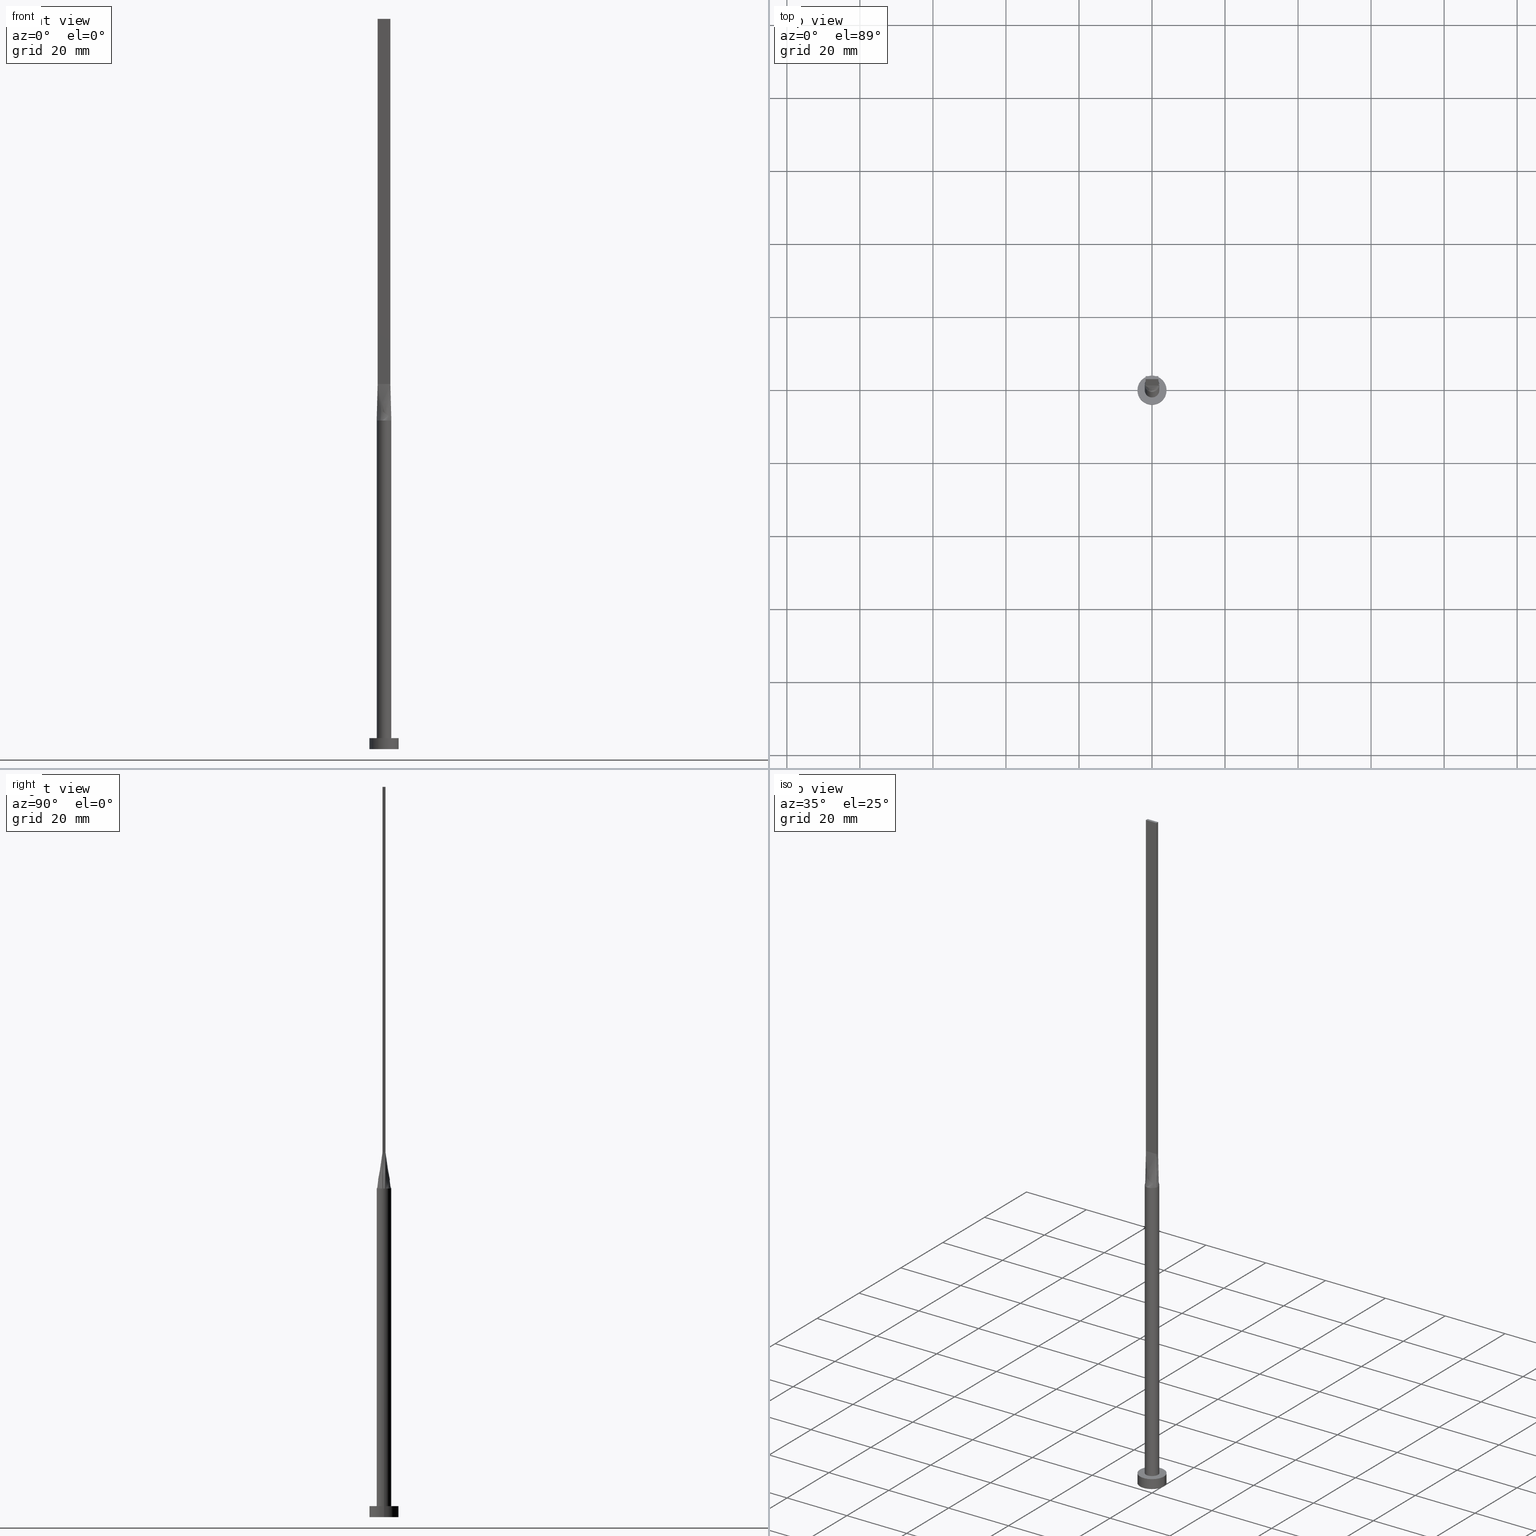
[diagram: canonical four-view strip — front | top / right | iso, engineering-drawing reading convention]
A machine part, canonical four-view strip (front | top / right | iso — engineering-drawing reading convention). The complete STEP part file that produces these views, byte-faithful:
ISO-10303-21;
HEADER;
FILE_DESCRIPTION (( 'STEP AP203' ),
    '1' );
FILE_NAME ('a8f1.STEP',
    '2026-02-12T09:06:40',
    ( '' ),
    ( '' ),
    'SwSTEP 2.0',
    'SolidWorks 2019',
    '' );
FILE_SCHEMA (( 'CONFIG_CONTROL_DESIGN' ));
ENDSEC;

DATA;
#1 = DIRECTION ( 'NONE',  ( 1.000000000000000000, 0.000000000000000000, 0.000000000000000000 ) ) ;
#2 = ADVANCED_FACE ( 'NONE', ( #146 ), #374, .T. ) ;
#3 = CARTESIAN_POINT ( 'NONE',  ( -0.5307032259479420588, 1.945168061822314609, 90.00000000000000000 ) ) ;
#4 = CC_DESIGN_SECURITY_CLASSIFICATION ( #548, ( #376 ) ) ;
#5 = FACE_OUTER_BOUND ( 'NONE', #440, .T. ) ;
#6 = CYLINDRICAL_SURFACE ( 'NONE', #176, 4.000000000000000000 ) ;
#7 = EDGE_CURVE ( 'NONE', #461, #222, #410, .T. ) ;
#8 = CARTESIAN_POINT ( 'NONE',  ( -1.002818635501954381, 1.749193953526918532, 90.00000000000001421 ) ) ;
#9 = APPROVAL_PERSON_ORGANIZATION ( #28, #456, #513 ) ;
#10 = ORIENTED_EDGE ( 'NONE', *, *, #96, .T. ) ;
#11 = DIRECTION ( 'NONE',  ( 1.000000000000000000, 0.000000000000000000, 0.000000000000000000 ) ) ;
#12 = VERTEX_POINT ( 'NONE', #497 ) ;
#13 = CARTESIAN_POINT ( 'NONE',  ( 0.000000000000000000, 0.000000000000000000, 3.000000000000000000 ) ) ;
#14 = ORIENTED_EDGE ( 'NONE', *, *, #127, .F. ) ;
#15 = AXIS2_PLACEMENT_3D ( 'NONE', #186, #125, #353 ) ;
#16 = CIRCLE ( 'NONE', #322, 4.000000000000000000 ) ;
#17 = CARTESIAN_POINT ( 'NONE',  ( 1.999683952654101260, 4.637163118916083254E-16, 90.00000000000000000 ) ) ;
#18 = EDGE_CURVE ( 'NONE', #448, #461, #359, .T. ) ;
#19 = CARTESIAN_POINT ( 'NONE',  ( -1.999683952654101704, -4.787247324473225831E-16, 90.00000000000000000 ) ) ;
#20 = PERSON_AND_ORGANIZATION_ROLE ( 'design_supplier' ) ;
#21 = DIRECTION ( 'NONE',  ( 0.000000000000000000, -0.000000000000000000, -1.000000000000000000 ) ) ;
#22 = DATE_AND_TIME ( #169, #208 ) ;
#23 = FACE_OUTER_BOUND ( 'NONE', #76, .T. ) ;
#24 = ORIENTED_EDGE ( 'NONE', *, *, #313, .T. ) ;
#25 = CARTESIAN_POINT ( 'NONE',  ( 1.604166666666666963, -0.3999999999999997446, 99.99999999999998579 ) ) ;
#26 = ORIENTED_EDGE ( 'NONE', *, *, #59, .T. ) ;
#27 = CARTESIAN_POINT ( 'NONE',  ( -1.749999999999999778, 0.4000000000000003553, 99.99999999999998579 ) ) ;
#28 = PERSON_AND_ORGANIZATION ( #140, #230 ) ;
#29 = EDGE_LOOP ( 'NONE', ( #183, #435, #419, #123, #515 ) ) ;
#30 = DIRECTION ( 'NONE',  ( 1.000000000000000000, -2.710505431213761085E-16, 0.000000000000000000 ) ) ;
#31 = ORIENTED_EDGE ( 'NONE', *, *, #127, .T. ) ;
#32 = DATE_AND_TIME ( #438, #433 ) ;
#33 = CARTESIAN_POINT ( 'NONE',  ( -0.5307032259479425029, -1.945168061822315275, 90.00000000000001421 ) ) ;
#34 = ADVANCED_FACE ( 'NONE', ( #298 ), #66, .F. ) ;
#35 = VECTOR ( 'NONE', #154, 1000.000000000000000 ) ;
#36 = DIRECTION ( 'NONE',  ( 0.000000000000000000, 0.000000000000000000, 1.000000000000000000 ) ) ;
#37 = APPROVAL_PERSON_ORGANIZATION ( #566, #296, #378 ) ;
#38 =( NAMED_UNIT ( * ) PLANE_ANGLE_UNIT ( ) SI_UNIT ( $, .RADIAN. ) );
#39 = CARTESIAN_POINT ( 'NONE',  ( -1.750000000000000000, -0.3999999999999996891, 99.99999999999998579 ) ) ;
#40 = EDGE_CURVE ( 'NONE', #117, #81, #54, .T. ) ;
#41 = DIRECTION ( 'NONE',  ( 0.000000000000000000, 0.000000000000000000, 1.000000000000000000 ) ) ;
#42 = DIRECTION ( 'NONE',  ( -1.000000000000000000, -0.000000000000000000, -0.000000000000000000 ) ) ;
#43 = CIRCLE ( 'NONE', #429, 2.000000000000000000 ) ;
#44 = VECTOR ( 'NONE', #130, 1000.000000000000227 ) ;
#45 = CARTESIAN_POINT ( 'NONE',  ( 1.749999999999999778, 0.4000000000000003553, 200.0000000000000000 ) ) ;
#46 = LOCAL_TIME ( 10, 6, 40.00000000000000000, #342 ) ;
#47 = CARTESIAN_POINT ( 'NONE',  ( -1.949717013143734468, 0.4456496030042821910, 90.00000000000000000 ) ) ;
#48 = CARTESIAN_POINT ( 'NONE',  ( -1.669156890509896796, 1.119033439449084399, 89.99999999999998579 ) ) ;
#49 = CARTESIAN_POINT ( 'NONE',  ( -1.749999999999999778, 0.4000000000000003553, 99.99999999999998579 ) ) ;
#50 = CARTESIAN_POINT ( 'NONE',  ( 0.5307032259479425029, 1.945168061822314165, 90.00000000000001421 ) ) ;
#51 = ORIENTED_EDGE ( 'NONE', *, *, #188, .F. ) ;
#52 = CARTESIAN_POINT ( 'NONE',  ( 0.2657394870669761988, 1.999999999999999556, 90.00000000000000000 ) ) ;
#53 = ADVANCED_FACE ( 'NONE', ( #23 ), #325, .F. ) ;
#54 = CIRCLE ( 'NONE', #315, 4.000000000000000000 ) ;
#55 = DIRECTION ( 'NONE',  ( 0.000000000000000000, 0.000000000000000000, 1.000000000000000000 ) ) ;
#56 = LINE ( 'NONE', #189, #35 ) ;
#57 = DIRECTION ( 'NONE',  ( 0.000000000000000000, 0.000000000000000000, 1.000000000000000000 ) ) ;
#58 = VERTEX_POINT ( 'NONE', #323 ) ;
#59 = EDGE_CURVE ( 'NONE', #241, #281, #43, .T. ) ;
#60 = CARTESIAN_POINT ( 'NONE',  ( -1.749999999999999778, 0.2666666666666666075, 99.99999999999997158 ) ) ;
#61 = VECTOR ( 'NONE', #285, 1000.000000000000000 ) ;
#62 = CARTESIAN_POINT ( 'NONE',  ( 1.749999999999999778, 0.4000000000000003553, 200.0000000000000000 ) ) ;
#63 = CYLINDRICAL_SURFACE ( 'NONE', #168, 4.000000000000000000 ) ;
#64 = ADVANCED_FACE ( 'NONE', ( #277, #452 ), #236, .T. ) ;
#65 = APPLICATION_PROTOCOL_DEFINITION ( 'international standard', 'config_control_design', 1994, #94 ) ;
#66 = PLANE ( 'NONE',  #302 ) ;
#67 = ORIENTED_EDGE ( 'NONE', *, *, #379, .T. ) ;
#68 = CARTESIAN_POINT ( 'NONE',  ( 1.209404336647714517, -1.609323485403446385, 90.00000000000001421 ) ) ;
#69 = VERTEX_POINT ( 'NONE', #543 ) ;
#70 = DIRECTION ( 'NONE',  ( 1.000000000000000000, 0.000000000000000000, -0.000000000000000000 ) ) ;
#71 = CARTESIAN_POINT ( 'NONE',  ( 1.020833333333332149, 0.4000000000000004108, 99.99999999999998579 ) ) ;
#72 = CARTESIAN_POINT ( 'NONE',  ( -1.949717013143734690, -0.4456496030042821355, 90.00000000000000000 ) ) ;
#73 = VECTOR ( 'NONE', #534, 1000.000000000000227 ) ;
#74 = ORIENTED_EDGE ( 'NONE', *, *, #326, .T. ) ;
#75 = APPLICATION_PROTOCOL_DEFINITION ( 'international standard', 'config_control_design', 1994, #470 ) ;
#76 = EDGE_LOOP ( 'NONE', ( #106, #305, #100, #502 ) ) ;
#77 = FACE_OUTER_BOUND ( 'NONE', #216, .T. ) ;
#78 = ORIENTED_EDGE ( 'NONE', *, *, #171, .F. ) ;
#79 = ADVANCED_FACE ( 'NONE', ( #207 ), #387, .F. ) ;
#80 = CARTESIAN_POINT ( 'NONE',  ( 1.749999999999999778, -0.1333333333333330262, 99.99999999999997158 ) ) ;
#81 = VERTEX_POINT ( 'NONE', #408 ) ;
#82 = DIRECTION ( 'NONE',  ( 2.710505431213761085E-16, 1.000000000000000000, 0.000000000000000000 ) ) ;
#83 = DIRECTION ( 'NONE',  ( -1.000000000000000000, 0.000000000000000000, 0.000000000000000000 ) ) ;
#84 = CARTESIAN_POINT ( 'NONE',  ( 1.854458107241759190, 0.7741483657718509770, 90.00000000000000000 ) ) ;
#85 = CC_DESIGN_PERSON_AND_ORGANIZATION_ASSIGNMENT ( #329, #166, ( #550 ) ) ;
#86 = VERTEX_POINT ( 'NONE', #267 ) ;
#87 = CARTESIAN_POINT ( 'NONE',  ( 0.000000000000000000, 0.000000000000000000, 0.000000000000000000 ) ) ;
#88 = PLANE ( 'NONE',  #405 ) ;
#89 = CARTESIAN_POINT ( 'NONE',  ( -0.2916666666666677954, 0.4000000000000004108, 99.99999999999997158 ) ) ;
#90 = CARTESIAN_POINT ( 'NONE',  ( 1.542259513637948443, 1.293837904363074998, 90.00000000000000000 ) ) ;
#91 = CIRCLE ( 'NONE', #118, 4.000000000000000000 ) ;
#92 = EDGE_LOOP ( 'NONE', ( #174, #404, #157, #250 ) ) ;
#93 = CARTESIAN_POINT ( 'NONE',  ( 0.5307032259479425029, 1.945168061822314165, 90.00000000000001421 ) ) ;
#94 = APPLICATION_CONTEXT ( 'configuration controlled 3d designs of mechanical parts and assemblies' ) ;
#95 = CARTESIAN_POINT ( 'NONE',  ( 0.5833333333333321491, 0.4000000000000004108, 99.99999999999997158 ) ) ;
#96 = EDGE_CURVE ( 'NONE', #69, #461, #409, .T. ) ;
#97 = DIRECTION ( 'NONE',  ( -0.000000000000000000, -0.000000000000000000, -1.000000000000000000 ) ) ;
#98 = CARTESIAN_POINT ( 'NONE',  ( -1.849858506571867123, 0.4228248015021412454, 95.00000000000000000 ) ) ;
#99 = DIRECTION ( 'NONE',  ( -0.000000000000000000, -0.000000000000000000, -1.000000000000000000 ) ) ;
#100 = ORIENTED_EDGE ( 'NONE', *, *, #482, .F. ) ;
#101 = CLOSED_SHELL ( 'NONE', ( #562, #147, #343, #64, #34, #211, #466, #436, #237, #2, #231, #413, #53, #79, #449 ) ) ;
#102 = ORIENTED_EDGE ( 'NONE', *, *, #253, .F. ) ;
#103 = CARTESIAN_POINT ( 'NONE',  ( 1.749999999999999778, 0.4000000000000003553, 99.99999999999998579 ) ) ;
#104 = B_SPLINE_SURFACE_WITH_KNOTS ( 'NONE', 3, 1, ( 
 ( #72, #574 ),
 ( #212, #437 ),
 ( #341, #295 ),
 ( #439, #441 ),
 ( #300, #257 ),
 ( #390, #469 ),
 ( #529, #576 ),
 ( #33, #306 ),
 ( #113, #381 ),
 ( #218, #170 ),
 ( #344, #572 ),
 ( #531, #308 ),
 ( #68, #481 ),
 ( #263, #202 ),
 ( #565, #159 ),
 ( #331, #516 ),
 ( #251, #25 ),
 ( #473, #385 ) ),
 .UNSPECIFIED., .F., .F., .F.,
 ( 4, 2, 2, 2, 2, 2, 2, 2, 4 ),
 ( 2, 2 ),
 ( 0.000000000000000000, 0.1250000000000000000, 0.2500000000000000000, 0.3750000000000000000, 0.5000000000000000000, 0.6250000000000000000, 0.7500000000000000000, 0.8750000000000000000, 1.000000000000000000 ),
 ( 0.000000000000000000, 1.000000000000000000 ),
 .UNSPECIFIED. ) ;
#105 = EDGE_CURVE ( 'NONE', #190, #299, #181, .T. ) ;
#106 = ORIENTED_EDGE ( 'NONE', *, *, #276, .T. ) ;
#107 = CARTESIAN_POINT ( 'NONE',  ( -2.000000000000000000, 0.000000000000000000, 3.000000000000000000 ) ) ;
#108 = CARTESIAN_POINT ( 'NONE',  ( 1.750000000000000000, -0.3999999999999996891, 200.0000000000000000 ) ) ;
#109 = DIRECTION ( 'NONE',  ( -1.000000000000000000, 0.000000000000000000, 0.000000000000000000 ) ) ;
#110 = COORDINATED_UNIVERSAL_TIME_OFFSET ( 1, 0, .AHEAD. ) ;
#111 = CC_DESIGN_APPROVAL ( #370, ( #548 ) ) ;
#112 = CARTESIAN_POINT ( 'NONE',  ( 1.999367905308202742, 0.1504172504289574275, 90.00000000000000000 ) ) ;
#113 = CARTESIAN_POINT ( 'NONE',  ( -0.2657394870669760878, -2.000000000000000000, 90.00000000000000000 ) ) ;
#114 = EDGE_LOOP ( 'NONE', ( #486, #51, #260, #214 ) ) ;
#115 = CARTESIAN_POINT ( 'NONE',  ( -1.949896596863728293, 0.4456908869437610776, 90.00000000000000000 ) ) ;
#116 = CIRCLE ( 'NONE', #219, 2.000000000000000000 ) ;
#117 = VERTEX_POINT ( 'NONE', #539 ) ;
#118 = AXIS2_PLACEMENT_3D ( 'NONE', #87, #36, #1 ) ;
#119 = SHAPE_DEFINITION_REPRESENTATION ( #240, #187 ) ;
#120 = EDGE_CURVE ( 'NONE', #222, #12, #314, .T. ) ;
#121 = ORIENTED_EDGE ( 'NONE', *, *, #500, .F. ) ;
#122 = DIRECTION ( 'NONE',  ( 0.000000000000000000, 0.000000000000000000, 1.000000000000000000 ) ) ;
#123 = ORIENTED_EDGE ( 'NONE', *, *, #7, .F. ) ;
#124 = FACE_OUTER_BOUND ( 'NONE', #443, .T. ) ;
#125 = DIRECTION ( 'NONE',  ( 0.000000000000000000, 0.000000000000000000, 1.000000000000000000 ) ) ;
#126 = CARTESIAN_POINT ( 'NONE',  ( 4.000000000000000000, 4.898587196589412829E-16, 3.000000000000000000 ) ) ;
#127 = EDGE_CURVE ( 'NONE', #255, #448, #523, .T. ) ;
#128 = DIRECTION ( 'NONE',  ( -1.000000000000000000, -2.710505431213761085E-16, 0.000000000000000000 ) ) ;
#129 = VECTOR ( 'NONE', #489, 1000.000000000000000 ) ;
#130 = DIRECTION ( 'NONE',  ( -0.01996751149463113842, -0.004564002627344153351, 0.9997902121768992290 ) ) ;
#131 = DIRECTION ( 'NONE',  ( 0.000000000000000000, 0.000000000000000000, 1.000000000000000000 ) ) ;
#132 = CARTESIAN_POINT ( 'NONE',  ( -1.749999999999999778, 0.4000000000000003553, 200.0000000000000000 ) ) ;
#133 = CARTESIAN_POINT ( 'NONE',  ( 0.1458333333333320936, 0.4000000000000004108, 99.99999999999997158 ) ) ;
#134 = CARTESIAN_POINT ( 'NONE',  ( -1.749999999999999778, 0.4000000000000003553, 200.0000000000000000 ) ) ;
#135 = CARTESIAN_POINT ( 'NONE',  ( -1.166666666666667407, 0.4000000000000004108, 99.99999999999997158 ) ) ;
#136 = CARTESIAN_POINT ( 'NONE',  ( 1.209404336647714073, 1.609323485403446830, 90.00000000000001421 ) ) ;
#137 = AXIS2_PLACEMENT_3D ( 'NONE', #265, #97, #451 ) ;
#138 = EDGE_CURVE ( 'NONE', #192, #461, #316, .T. ) ;
#139 = CARTESIAN_POINT ( 'NONE',  ( 0.000000000000000000, 0.000000000000000000, 90.00000000000000000 ) ) ;
#140 = PERSON ( 'NEUR�EN�', 'NEUR�EN�', 'NEUR�EN�', ('NEUR�EN�'), ('NEUR�EN�'), ('NEUR�EN�') ) ;
#141 = CARTESIAN_POINT ( 'NONE',  ( 1.949907982895221048, -0.4456935569447296186, 90.00000000000000000 ) ) ;
#142 = CARTESIAN_POINT ( 'NONE',  ( 1.669156890509896352, 1.119033439449084177, 89.99999999999997158 ) ) ;
#143 = ORIENTED_EDGE ( 'NONE', *, *, #276, .F. ) ;
#144 = ORIENTED_EDGE ( 'NONE', *, *, #379, .F. ) ;
#145 = DIRECTION ( 'NONE',  ( 0.000000000000000000, 0.000000000000000000, 1.000000000000000000 ) ) ;
#146 = FACE_OUTER_BOUND ( 'NONE', #398, .T. ) ;
#147 = ADVANCED_FACE ( 'NONE', ( #5 ), #6, .T. ) ;
#148 = CARTESIAN_POINT ( 'NONE',  ( -1.750000000000000000, -0.3999999999999996891, 200.0000000000000000 ) ) ;
#149 = VECTOR ( 'NONE', #242, 1000.000000000000000 ) ;
#150 = VERTEX_POINT ( 'NONE', #184 ) ;
#151 = AXIS2_PLACEMENT_3D ( 'NONE', #259, #30, #82 ) ;
#152 = DIRECTION ( 'NONE',  ( 0.000000000000000000, 0.000000000000000000, 1.000000000000000000 ) ) ;
#153 = ORIENTED_EDGE ( 'NONE', *, *, #577, .F. ) ;
#154 = DIRECTION ( 'NONE',  ( -0.000000000000000000, -0.000000000000000000, -1.000000000000000000 ) ) ;
#155 = DIRECTION ( 'NONE',  ( 0.000000000000000000, 1.000000000000000000, 0.000000000000000000 ) ) ;
#156 = DIRECTION ( 'NONE',  ( -0.000000000000000000, -0.000000000000000000, -1.000000000000000000 ) ) ;
#157 = ORIENTED_EDGE ( 'NONE', *, *, #482, .T. ) ;
#158 = CC_DESIGN_PERSON_AND_ORGANIZATION_ASSIGNMENT ( #162, #201, ( #506 ) ) ;
#159 = CARTESIAN_POINT ( 'NONE',  ( 1.166666666666666963, -0.3999999999999997446, 99.99999999999997158 ) ) ;
#160 = PERSON_AND_ORGANIZATION_ROLE ( 'creator' ) ;
#161 = CARTESIAN_POINT ( 'NONE',  ( 1.949717013143734690, 0.4456496030042815248, 90.00000000000000000 ) ) ;
#162 = PERSON_AND_ORGANIZATION ( #140, #230 ) ;
#163 = CARTESIAN_POINT ( 'NONE',  ( 1.949717013143734690, -0.4456496030042819689, 90.00000000000000000 ) ) ;
#164 = ORIENTED_EDGE ( 'NONE', *, *, #40, .F. ) ;
#165 = PRODUCT_RELATED_PRODUCT_CATEGORY ( 'detail', '', ( #506 ) ) ;
#166 = PERSON_AND_ORGANIZATION_ROLE ( 'creator' ) ;
#167 = CARTESIAN_POINT ( 'NONE',  ( 1.750000000000000000, -0.3999999999999996891, 99.99999999999998579 ) ) ;
#168 = AXIS2_PLACEMENT_3D ( 'NONE', #13, #99, #193 ) ;
#169 = CALENDAR_DATE ( 2026, 12, 2 ) ;
#170 = CARTESIAN_POINT ( 'NONE',  ( 0.1458333333333342863, -0.3999999999999997446, 99.99999999999997158 ) ) ;
#171 = EDGE_CURVE ( 'NONE', #241, #507, #358, .T. ) ;
#172 =( LENGTH_UNIT ( ) NAMED_UNIT ( * ) SI_UNIT ( .MILLI., .METRE. ) );
#173 = CARTESIAN_POINT ( 'NONE',  ( 0.000000000000000000, 0.000000000000000000, 3.000000000000000000 ) ) ;
#174 = ORIENTED_EDGE ( 'NONE', *, *, #264, .T. ) ;
#175 = CARTESIAN_POINT ( 'NONE',  ( -1.749999999999999778, 0.4000000000000003553, 99.99999999999998579 ) ) ;
#176 = AXIS2_PLACEMENT_3D ( 'NONE', #580, #271, #179 ) ;
#177 = CARTESIAN_POINT ( 'NONE',  ( -1.020833333333334147, 0.4000000000000004108, 99.99999999999997158 ) ) ;
#178 = CARTESIAN_POINT ( 'NONE',  ( 0.000000000000000000, 0.000000000000000000, 90.00000000000000000 ) ) ;
#179 = DIRECTION ( 'NONE',  ( -1.000000000000000000, 0.000000000000000000, 0.000000000000000000 ) ) ;
#180 = ORIENTED_EDGE ( 'NONE', *, *, #511, .F. ) ;
#181 = LINE ( 'NONE', #484, #129 ) ;
#182 = EDGE_CURVE ( 'NONE', #12, #241, #504, .T. ) ;
#183 = ORIENTED_EDGE ( 'NONE', *, *, #330, .T. ) ;
#184 = CARTESIAN_POINT ( 'NONE',  ( 2.000000000000000000, 2.449293598294706414E-16, 3.000000000000000000 ) ) ;
#185 = CARTESIAN_POINT ( 'NONE',  ( -1.949896596863728293, 0.4456908869437610776, 90.00000000000000000 ) ) ;
#186 = CARTESIAN_POINT ( 'NONE',  ( 0.000000000000000000, 0.000000000000000000, 3.000000000000000000 ) ) ;
#187 = ADVANCED_BREP_SHAPE_REPRESENTATION ( 'a8f1', ( #229, #262 ), #558 ) ;
#188 = EDGE_CURVE ( 'NONE', #299, #192, #447, .T. ) ;
#189 = CARTESIAN_POINT ( 'NONE',  ( -4.000000000000000000, 0.000000000000000000, 3.000000000000000000 ) ) ;
#190 = VERTEX_POINT ( 'NONE', #412 ) ;
#191 = B_SPLINE_SURFACE_WITH_KNOTS ( 'NONE', 3, 1, ( 
 ( #198, #279 ),
 ( #459, #60 ),
 ( #375, #248 ),
 ( #199, #510 ),
 ( #563, #551 ),
 ( #561, #290 ) ),
 .UNSPECIFIED., .F., .F., .F.,
 ( 4, 2, 4 ),
 ( 2, 2 ),
 ( 0.000000000000000000, 0.5000000000000000000, 1.000000000000000000 ),
 ( 0.000000000000000000, 1.000000000000000000 ),
 .UNSPECIFIED. ) ;
#192 = VERTEX_POINT ( 'NONE', #547 ) ;
#193 = DIRECTION ( 'NONE',  ( -1.000000000000000000, 0.000000000000000000, 0.000000000000000000 ) ) ;
#194 = CARTESIAN_POINT ( 'NONE',  ( 1.949717013143734468, 0.4456496030042822465, 90.00000000000000000 ) ) ;
#195 = VECTOR ( 'NONE', #355, 1000.000000000000227 ) ;
#196 = EDGE_LOOP ( 'NONE', ( #294, #164, #467, #24 ) ) ;
#197 = AXIS2_PLACEMENT_3D ( 'NONE', #238, #416, #11 ) ;
#198 = CARTESIAN_POINT ( 'NONE',  ( -1.949717013143734468, 0.4456496030042826351, 90.00000000000000000 ) ) ;
#199 = CARTESIAN_POINT ( 'NONE',  ( -1.999367905308203630, -0.1504172504289575940, 90.00000000000000000 ) ) ;
#200 = EDGE_CURVE ( 'NONE', #258, #12, #289, .T. ) ;
#201 = PERSON_AND_ORGANIZATION_ROLE ( 'design_owner' ) ;
#202 = CARTESIAN_POINT ( 'NONE',  ( 1.020833333333333925, -0.3999999999999997446, 99.99999999999997158 ) ) ;
#203 = CARTESIAN_POINT ( 'NONE',  ( 0.000000000000000000, 0.000000000000000000, 0.000000000000000000 ) ) ;
#204 = CARTESIAN_POINT ( 'NONE',  ( 1.458333333333332371, 0.4000000000000003553, 99.99999999999998579 ) ) ;
#205 = CARTESIAN_POINT ( 'NONE',  ( 1.999367905308202742, -0.1504172504289578716, 90.00000000000000000 ) ) ;
#206 = ORIENTED_EDGE ( 'NONE', *, *, #182, .T. ) ;
#207 = FACE_OUTER_BOUND ( 'NONE', #114, .T. ) ;
#208 = LOCAL_TIME ( 10, 6, 40.00000000000000000, #110 ) ;
#209 = PERSON_AND_ORGANIZATION ( #140, #230 ) ;
#210 = ORIENTED_EDGE ( 'NONE', *, *, #247, .F. ) ;
#211 = ADVANCED_FACE ( 'NONE', ( #309 ), #317, .T. ) ;
#212 = CARTESIAN_POINT ( 'NONE',  ( -1.913513237607142425, -0.6040411209768705714, 90.00000000000001421 ) ) ;
#213 = PERSON_AND_ORGANIZATION ( #140, #230 ) ;
#214 = ORIENTED_EDGE ( 'NONE', *, *, #287, .T. ) ;
#215 = CARTESIAN_POINT ( 'NONE',  ( 1.749999999999999778, 0.1333333333333336645, 99.99999999999997158 ) ) ;
#216 = EDGE_LOOP ( 'NONE', ( #206, #224, #143, #581 ) ) ;
#217 = APPROVAL_DATE_TIME ( #337, #456 ) ;
#218 = CARTESIAN_POINT ( 'NONE',  ( 0.2657394870669759768, -2.000000000000000444, 89.99999999999998579 ) ) ;
#219 = AXIS2_PLACEMENT_3D ( 'NONE', #318, #152, #465 ) ;
#220 = CARTESIAN_POINT ( 'NONE',  ( 1.849858506571867123, 0.4228248015021409678, 95.00000000000000000 ) ) ;
#221 = CARTESIAN_POINT ( 'NONE',  ( -1.854458107241758746, 0.7741483657718513101, 89.99999999999998579 ) ) ;
#222 = VERTEX_POINT ( 'NONE', #39 ) ;
#223 = DIRECTION ( 'NONE',  ( 2.710505431213761085E-16, -1.000000000000000000, 0.000000000000000000 ) ) ;
#224 = ORIENTED_EDGE ( 'NONE', *, *, #171, .T. ) ;
#225 = DIRECTION ( 'NONE',  ( 1.000000000000000000, 0.000000000000000000, 0.000000000000000000 ) ) ;
#226 = VECTOR ( 'NONE', #156, 1000.000000000000000 ) ;
#227 = CARTESIAN_POINT ( 'NONE',  ( -1.913513237607142647, 0.6040411209768712375, 90.00000000000000000 ) ) ;
#228 = VECTOR ( 'NONE', #400, 1000.000000000000000 ) ;
#229 = MANIFOLD_SOLID_BREP ( 'P�idat vysunut�m5', #101 ) ;
#230 = ORGANIZATION ( 'NEUR�EN�', 'NEUR�EN�', '' ) ;
#231 = ADVANCED_FACE ( 'NONE', ( #488 ), #88, .F. ) ;
#232 = CARTESIAN_POINT ( 'NONE',  ( -1.209404336647713851, 1.609323485403446830, 90.00000000000000000 ) ) ;
#233 = DIRECTION ( 'NONE',  ( -0.000000000000000000, -0.000000000000000000, -1.000000000000000000 ) ) ;
#234 = DIRECTION ( 'NONE',  ( -2.710505431213761085E-16, -1.000000000000000000, 0.000000000000000000 ) ) ;
#235 = DIRECTION ( 'NONE',  ( -0.000000000000000000, -0.000000000000000000, -1.000000000000000000 ) ) ;
#236 = PLANE ( 'NONE',  #15 ) ;
#237 = ADVANCED_FACE ( 'NONE', ( #377 ), #191, .T. ) ;
#238 = CARTESIAN_POINT ( 'NONE',  ( 0.000000000000000000, 0.000000000000000000, 3.000000000000000000 ) ) ;
#239 = CARTESIAN_POINT ( 'NONE',  ( 1.749999999999999778, 0.4000000000000003553, 200.0000000000000000 ) ) ;
#240 = PRODUCT_DEFINITION_SHAPE ( 'NONE', 'NONE',  #550 ) ;
#241 = VERTEX_POINT ( 'NONE', #141 ) ;
#242 = DIRECTION ( 'NONE',  ( -2.710505431213761085E-16, 1.000000000000000000, -0.000000000000000000 ) ) ;
#243 = DIRECTION ( 'NONE',  ( 0.000000000000000000, -0.000000000000000000, 1.000000000000000000 ) ) ;
#244 = VECTOR ( 'NONE', #455, 1000.000000000000000 ) ;
#245 = AXIS2_PLACEMENT_3D ( 'NONE', #178, #537, #83 ) ;
#246 = DIRECTION ( 'NONE',  ( 0.000000000000000000, -1.000000000000000000, 0.000000000000000000 ) ) ;
#247 = EDGE_CURVE ( 'NONE', #507, #192, #363, .T. ) ;
#248 = CARTESIAN_POINT ( 'NONE',  ( -1.749999999999999778, 0.1333333333333331094, 99.99999999999997158 ) ) ;
#249 = APPROVAL_STATUS ( 'not_yet_approved' ) ;
#250 = ORIENTED_EDGE ( 'NONE', *, *, #105, .T. ) ;
#251 = CARTESIAN_POINT ( 'NONE',  ( 1.913513237607143314, -0.6040411209768704603, 90.00000000000000000 ) ) ;
#252 = COORDINATED_UNIVERSAL_TIME_OFFSET ( 1, 0, .AHEAD. ) ;
#253 = EDGE_CURVE ( 'NONE', #117, #58, #56, .T. ) ;
#254 = CARTESIAN_POINT ( 'NONE',  ( 0.000000000000000000, 0.000000000000000000, 3.000000000000000000 ) ) ;
#255 = VERTEX_POINT ( 'NONE', #282 ) ;
#256 = VECTOR ( 'NONE', #233, 1000.000000000000000 ) ;
#257 = CARTESIAN_POINT ( 'NONE',  ( -1.020833333333332815, -0.3999999999999997446, 99.99999999999998579 ) ) ;
#258 = VERTEX_POINT ( 'NONE', #19 ) ;
#259 = CARTESIAN_POINT ( 'NONE',  ( -1.749999999999999778, 0.4000000000000003553, 200.0000000000000000 ) ) ;
#260 = ORIENTED_EDGE ( 'NONE', *, *, #105, .F. ) ;
#261 = FACE_OUTER_BOUND ( 'NONE', #92, .T. ) ;
#262 = AXIS2_PLACEMENT_3D ( 'NONE', #203, #479, #293 ) ;
#263 = CARTESIAN_POINT ( 'NONE',  ( 1.542259513637949109, -1.293837904363074331, 90.00000000000002842 ) ) ;
#264 = EDGE_CURVE ( 'NONE', #299, #69, #368, .T. ) ;
#265 = CARTESIAN_POINT ( 'NONE',  ( 0.000000000000000000, 0.000000000000000000, 90.00000000000000000 ) ) ;
#266 = LINE ( 'NONE', #126, #421 ) ;
#267 = CARTESIAN_POINT ( 'NONE',  ( -1.750000000000000000, -0.3999999999999996891, 200.0000000000000000 ) ) ;
#268 = CARTESIAN_POINT ( 'NONE',  ( -0.7291666666666674068, 0.4000000000000004108, 99.99999999999998579 ) ) ;
#269 = CC_DESIGN_PERSON_AND_ORGANIZATION_ASSIGNMENT ( #209, #388, ( #548 ) ) ;
#270 = CARTESIAN_POINT ( 'NONE',  ( -1.002818635501954381, 1.749193953526918532, 90.00000000000001421 ) ) ;
#271 = DIRECTION ( 'NONE',  ( -0.000000000000000000, -0.000000000000000000, -1.000000000000000000 ) ) ;
#272 = CIRCLE ( 'NONE', #446, 2.000000000000000000 ) ;
#273 = CARTESIAN_POINT ( 'NONE',  ( -1.913513237607142647, 0.6040411209768712375, 90.00000000000000000 ) ) ;
#274 = CARTESIAN_POINT ( 'NONE',  ( -1.542259513637947999, 1.293837904363075442, 90.00000000000001421 ) ) ;
#275 = DIRECTION ( 'NONE',  ( 1.000000000000000000, 0.000000000000000000, 0.000000000000000000 ) ) ;
#276 = EDGE_CURVE ( 'NONE', #222, #507, #328, .T. ) ;
#277 = FACE_BOUND ( 'NONE', #458, .T. ) ;
#278 = EDGE_LOOP ( 'NONE', ( #501, #74, #67, #301, #280, #14 ) ) ;
#279 = CARTESIAN_POINT ( 'NONE',  ( -1.749999999999999778, 0.4000000000000003553, 99.99999999999998579 ) ) ;
#280 = ORIENTED_EDGE ( 'NONE', *, *, #330, .F. ) ;
#281 = VERTEX_POINT ( 'NONE', #17 ) ;
#282 = CARTESIAN_POINT ( 'NONE',  ( 1.949877516600953875, 0.4456865912299994847, 90.00000000000000000 ) ) ;
#283 = CARTESIAN_POINT ( 'NONE',  ( 0.7291666666666655194, 0.4000000000000004108, 99.99999999999997158 ) ) ;
#284 = ORIENTED_EDGE ( 'NONE', *, *, #540, .T. ) ;
#285 = DIRECTION ( 'NONE',  ( -0.000000000000000000, -0.000000000000000000, -1.000000000000000000 ) ) ;
#286 = B_SPLINE_SURFACE_WITH_KNOTS ( 'NONE', 3, 1, ( 
 ( #163, #167 ),
 ( #336, #427 ),
 ( #205, #80 ),
 ( #112, #215 ),
 ( #522, #480 ),
 ( #161, #393 ) ),
 .UNSPECIFIED., .F., .F., .F.,
 ( 4, 2, 4 ),
 ( 2, 2 ),
 ( 0.000000000000000000, 0.5000000000000000000, 1.000000000000000000 ),
 ( 0.000000000000000000, 1.000000000000000000 ),
 .UNSPECIFIED. ) ;
#287 = EDGE_CURVE ( 'NONE', #190, #507, #418, .T. ) ;
#288 = CARTESIAN_POINT ( 'NONE',  ( 0.000000000000000000, 0.000000000000000000, 0.000000000000000000 ) ) ;
#289 = CIRCLE ( 'NONE', #339, 2.000000000000000000 ) ;
#290 = CARTESIAN_POINT ( 'NONE',  ( -1.750000000000000000, -0.3999999999999996891, 99.99999999999998579 ) ) ;
#291 = ORIENTED_EDGE ( 'NONE', *, *, #313, .F. ) ;
#292 = APPROVAL_PERSON_ORGANIZATION ( #571, #370, #334 ) ;
#293 = DIRECTION ( 'NONE',  ( 1.000000000000000000, 0.000000000000000000, 0.000000000000000000 ) ) ;
#294 = ORIENTED_EDGE ( 'NONE', *, *, #540, .F. ) ;
#295 = CARTESIAN_POINT ( 'NONE',  ( -1.458333333333333037, -0.3999999999999996891, 99.99999999999998579 ) ) ;
#296 = APPROVAL ( #249, 'NEUR�EN�' ) ;
#297 = SECURITY_CLASSIFICATION_LEVEL ( 'unclassified' ) ;
#298 = FACE_OUTER_BOUND ( 'NONE', #453, .T. ) ;
#299 = VERTEX_POINT ( 'NONE', #62 ) ;
#300 = CARTESIAN_POINT ( 'NONE',  ( -1.542259513637948887, -1.293837904363074331, 90.00000000000001421 ) ) ;
#301 = ORIENTED_EDGE ( 'NONE', *, *, #360, .F. ) ;
#302 = AXIS2_PLACEMENT_3D ( 'NONE', #471, #514, #70 ) ;
#303 = VECTOR ( 'NONE', #406, 1000.000000000000000 ) ;
#304 = PLANE ( 'NONE',  #407 ) ;
#305 = ORIENTED_EDGE ( 'NONE', *, *, #287, .F. ) ;
#306 = CARTESIAN_POINT ( 'NONE',  ( -0.2916666666666657415, -0.3999999999999997446, 99.99999999999997158 ) ) ;
#307 = ORIENTED_EDGE ( 'NONE', *, *, #138, .T. ) ;
#308 = CARTESIAN_POINT ( 'NONE',  ( 0.5833333333333341475, -0.3999999999999997446, 99.99999999999997158 ) ) ;
#309 = FACE_OUTER_BOUND ( 'NONE', #542, .T. ) ;
#310 = ORIENTED_EDGE ( 'NONE', *, *, #402, .T. ) ;
#311 = CYLINDRICAL_SURFACE ( 'NONE', #245, 2.000000000000000000 ) ;
#312 = CARTESIAN_POINT ( 'NONE',  ( 1.949877516600953875, 0.4456865912299994847, 90.00000000000000000 ) ) ;
#313 = EDGE_CURVE ( 'NONE', #58, #411, #396, .T. ) ;
#314 = LINE ( 'NONE', #450, #545 ) ;
#315 = AXIS2_PLACEMENT_3D ( 'NONE', #254, #431, #380 ) ;
#316 = LINE ( 'NONE', #175, #454 ) ;
#317 = CYLINDRICAL_SURFACE ( 'NONE', #137, 2.000000000000000000 ) ;
#318 = CARTESIAN_POINT ( 'NONE',  ( 0.000000000000000000, 0.000000000000000000, 90.00000000000000000 ) ) ;
#319 = ORIENTED_EDGE ( 'NONE', *, *, #200, .F. ) ;
#320 = DIRECTION ( 'NONE',  ( 1.000000000000000000, 0.000000000000000000, 0.000000000000000000 ) ) ;
#321 = CARTESIAN_POINT ( 'NONE',  ( 1.913513237607142647, 0.6040411209768705714, 90.00000000000001421 ) ) ;
#322 = AXIS2_PLACEMENT_3D ( 'NONE', #173, #41, #225 ) ;
#323 = CARTESIAN_POINT ( 'NONE',  ( -4.000000000000000000, 0.000000000000000000, 0.000000000000000000 ) ) ;
#324 = DIRECTION ( 'NONE',  ( 1.000000000000000000, 0.000000000000000000, 0.000000000000000000 ) ) ;
#325 = PLANE ( 'NONE',  #382 ) ;
#326 = EDGE_CURVE ( 'NONE', #281, #150, #422, .T. ) ;
#327 = CARTESIAN_POINT ( 'NONE',  ( 1.749999999999999778, 0.4000000000000003553, 200.0000000000000000 ) ) ;
#328 = LINE ( 'NONE', #509, #244 ) ;
#329 = PERSON_AND_ORGANIZATION ( #140, #230 ) ;
#330 = EDGE_CURVE ( 'NONE', #448, #258, #116, .T. ) ;
#331 = CARTESIAN_POINT ( 'NONE',  ( 1.854458107241758746, -0.7741483657718503109, 89.99999999999998579 ) ) ;
#332 = APPROVAL_STATUS ( 'not_yet_approved' ) ;
#333 = CARTESIAN_POINT ( 'NONE',  ( -1.750000000000000000, -0.3999999999999996891, 200.0000000000000000 ) ) ;
#334 = APPROVAL_ROLE ( '' ) ;
#335 = ORIENTED_EDGE ( 'NONE', *, *, #264, .F. ) ;
#336 = CARTESIAN_POINT ( 'NONE',  ( 1.982817607920046798, -0.3008345008579155211, 90.00000000000000000 ) ) ;
#337 = DATE_AND_TIME ( #430, #362 ) ;
#338 = ORIENTED_EDGE ( 'NONE', *, *, #511, .T. ) ;
#339 = AXIS2_PLACEMENT_3D ( 'NONE', #139, #131, #275 ) ;
#340 = CIRCLE ( 'NONE', #197, 2.000000000000000000 ) ;
#341 = CARTESIAN_POINT ( 'NONE',  ( -1.854458107241759190, -0.7741483657718508660, 90.00000000000000000 ) ) ;
#342 = COORDINATED_UNIVERSAL_TIME_OFFSET ( 1, 0, .AHEAD. ) ;
#343 = ADVANCED_FACE ( 'NONE', ( #498 ), #63, .T. ) ;
#344 = CARTESIAN_POINT ( 'NONE',  ( 0.5307032259479425029, -1.945168061822314831, 90.00000000000001421 ) ) ;
#345 = CARTESIAN_POINT ( 'NONE',  ( -1.542259513637947999, 1.293837904363075442, 90.00000000000001421 ) ) ;
#346 = CARTESIAN_POINT ( 'NONE',  ( 1.750000000000000000, -0.3999999999999996891, 99.99999999999998579 ) ) ;
#347 = CC_DESIGN_PERSON_AND_ORGANIZATION_ASSIGNMENT ( #213, #20, ( #376 ) ) ;
#348 = CARTESIAN_POINT ( 'NONE',  ( 1.002818635501954603, 1.749193953526918088, 90.00000000000000000 ) ) ;
#349 = LOCAL_TIME ( 10, 6, 40.00000000000000000, #530 ) ;
#350 = DIRECTION ( 'NONE',  ( -0.000000000000000000, -0.000000000000000000, -1.000000000000000000 ) ) ;
#351 = DIRECTION ( 'NONE',  ( 0.000000000000000000, 0.000000000000000000, 1.000000000000000000 ) ) ;
#352 = CARTESIAN_POINT ( 'NONE',  ( -1.209404336647713851, 1.609323485403446830, 90.00000000000000000 ) ) ;
#353 = DIRECTION ( 'NONE',  ( 1.000000000000000000, 0.000000000000000000, -0.000000000000000000 ) ) ;
#354 = DIRECTION ( 'NONE',  ( -0.01996751149463111413, -0.004564002627344279119, -0.9997902121768992290 ) ) ;
#355 = DIRECTION ( 'NONE',  ( 0.01996751149463111413, -0.004564002627344219271, 0.9997902121768992290 ) ) ;
#356 = ORIENTED_EDGE ( 'NONE', *, *, #326, .F. ) ;
#357 = AXIS2_PLACEMENT_3D ( 'NONE', #288, #365, #463 ) ;
#358 = LINE ( 'NONE', #403, #73 ) ;
#359 = LINE ( 'NONE', #98, #195 ) ;
#360 = EDGE_CURVE ( 'NONE', #258, #392, #512, .T. ) ;
#361 = CARTESIAN_POINT ( 'NONE',  ( 0.2916666666666654639, 0.4000000000000004108, 99.99999999999997158 ) ) ;
#362 = LOCAL_TIME ( 10, 6, 40.00000000000000000, #252 ) ;
#363 = LINE ( 'NONE', #103, #149 ) ;
#364 = CARTESIAN_POINT ( 'NONE',  ( 0.2657394870669761988, 1.999999999999999556, 90.00000000000000000 ) ) ;
#365 = DIRECTION ( 'NONE',  ( 0.000000000000000000, 0.000000000000000000, 1.000000000000000000 ) ) ;
#366 = ORIENTED_EDGE ( 'NONE', *, *, #188, .T. ) ;
#367 = ORIENTED_EDGE ( 'NONE', *, *, #532, .T. ) ;
#368 = LINE ( 'NONE', #327, #474 ) ;
#369 = CARTESIAN_POINT ( 'NONE',  ( 1.604166666666665630, 0.4000000000000003553, 99.99999999999998579 ) ) ;
#370 = APPROVAL ( #332, 'NEUR�EN�' ) ;
#371 = AXIS2_PLACEMENT_3D ( 'NONE', #445, #128, #223 ) ;
#372 = VECTOR ( 'NONE', #579, 1000.000000000000000 ) ;
#373 = ORIENTED_EDGE ( 'NONE', *, *, #394, .T. ) ;
#374 = B_SPLINE_SURFACE_WITH_KNOTS ( 'NONE', 3, 1, ( 
 ( #194, #552 ),
 ( #321, #369 ),
 ( #426, #204 ),
 ( #142, #384 ),
 ( #472, #71 ),
 ( #568, #283 ),
 ( #499, #95 ),
 ( #50, #361 ),
 ( #364, #133 ),
 ( #553, #549 ),
 ( #538, #89 ),
 ( #270, #493 ),
 ( #352, #268 ),
 ( #345, #177 ),
 ( #541, #135 ),
 ( #221, #490 ),
 ( #273, #401 ),
 ( #47, #49 ) ),
 .UNSPECIFIED., .F., .F., .F.,
 ( 4, 2, 2, 2, 2, 2, 2, 2, 4 ),
 ( 2, 2 ),
 ( 0.000000000000000000, 0.1250000000000000000, 0.2500000000000000000, 0.3750000000000000000, 0.5000000000000000000, 0.6250000000000000000, 0.7500000000000000000, 0.8750000000000000000, 1.000000000000000000 ),
 ( 0.000000000000000000, 1.000000000000000000 ),
 .UNSPECIFIED. ) ;
#375 = CARTESIAN_POINT ( 'NONE',  ( -1.999367905308203186, 0.1504172504289580936, 90.00000000000000000 ) ) ;
#376 = PRODUCT_DEFINITION_FORMATION_WITH_SPECIFIED_SOURCE ( 'LIBOVOLN�', '', #506, .NOT_KNOWN. ) ;
#377 = FACE_OUTER_BOUND ( 'NONE', #29, .T. ) ;
#378 = APPROVAL_ROLE ( '' ) ;
#379 = EDGE_CURVE ( 'NONE', #150, #392, #475, .T. ) ;
#380 = DIRECTION ( 'NONE',  ( 1.000000000000000000, 0.000000000000000000, 0.000000000000000000 ) ) ;
#381 = CARTESIAN_POINT ( 'NONE',  ( -0.1458333333333323711, -0.3999999999999997446, 99.99999999999997158 ) ) ;
#382 = AXIS2_PLACEMENT_3D ( 'NONE', #148, #155, #243 ) ;
#383 = COORDINATED_UNIVERSAL_TIME_OFFSET ( 1, 0, .AHEAD. ) ;
#384 = CARTESIAN_POINT ( 'NONE',  ( 1.166666666666665408, 0.4000000000000003553, 99.99999999999997158 ) ) ;
#385 = CARTESIAN_POINT ( 'NONE',  ( 1.750000000000000000, -0.3999999999999996891, 99.99999999999998579 ) ) ;
#386 = ORIENTED_EDGE ( 'NONE', *, *, #96, .F. ) ;
#387 = PLANE ( 'NONE',  #371 ) ;
#388 = PERSON_AND_ORGANIZATION_ROLE ( 'classification_officer' ) ;
#389 = EDGE_LOOP ( 'NONE', ( #556, #575 ) ) ;
#390 = CARTESIAN_POINT ( 'NONE',  ( -1.209404336647714739, -1.609323485403446607, 90.00000000000001421 ) ) ;
#391 = CALENDAR_DATE ( 2026, 12, 2 ) ;
#392 = VERTEX_POINT ( 'NONE', #107 ) ;
#393 = CARTESIAN_POINT ( 'NONE',  ( 1.749999999999999778, 0.4000000000000003553, 99.99999999999998579 ) ) ;
#394 = EDGE_CURVE ( 'NONE', #392, #150, #340, .T. ) ;
#395 = PERSON_AND_ORGANIZATION ( #140, #230 ) ;
#396 = CIRCLE ( 'NONE', #357, 4.000000000000000000 ) ;
#397 = FACE_OUTER_BOUND ( 'NONE', #428, .T. ) ;
#398 = EDGE_LOOP ( 'NONE', ( #31, #528, #521, #180 ) ) ;
#399 = CC_DESIGN_APPROVAL ( #456, ( #376 ) ) ;
#400 = DIRECTION ( 'NONE',  ( -2.710505431213761085E-16, -1.000000000000000000, 0.000000000000000000 ) ) ;
#401 = CARTESIAN_POINT ( 'NONE',  ( -1.604166666666666741, 0.4000000000000004108, 99.99999999999998579 ) ) ;
#402 = EDGE_CURVE ( 'NONE', #281, #255, #272, .T. ) ;
#403 = CARTESIAN_POINT ( 'NONE',  ( 1.849858506571867345, -0.4228248015021406347, 95.00000000000000000 ) ) ;
#404 = ORIENTED_EDGE ( 'NONE', *, *, #577, .T. ) ;
#405 = AXIS2_PLACEMENT_3D ( 'NONE', #239, #246, #21 ) ;
#406 = DIRECTION ( 'NONE',  ( -0.000000000000000000, -0.000000000000000000, -1.000000000000000000 ) ) ;
#407 = AXIS2_PLACEMENT_3D ( 'NONE', #432, #122, #518 ) ;
#408 = CARTESIAN_POINT ( 'NONE',  ( 4.000000000000000000, 4.898587196589412829E-16, 3.000000000000000000 ) ) ;
#409 = LINE ( 'NONE', #134, #492 ) ;
#410 = LINE ( 'NONE', #414, #464 ) ;
#411 = VERTEX_POINT ( 'NONE', #505 ) ;
#412 = CARTESIAN_POINT ( 'NONE',  ( 1.750000000000000000, -0.3999999999999996891, 200.0000000000000000 ) ) ;
#413 = ADVANCED_FACE ( 'NONE', ( #397 ), #477, .F. ) ;
#414 = CARTESIAN_POINT ( 'NONE',  ( -1.749999999999999778, 0.4000000000000003553, 99.99999999999998579 ) ) ;
#415 = CARTESIAN_POINT ( 'NONE',  ( -0.2657394870669756437, 1.999999999999999556, 90.00000000000001421 ) ) ;
#416 = DIRECTION ( 'NONE',  ( 0.000000000000000000, 0.000000000000000000, 1.000000000000000000 ) ) ;
#417 = ORIENTED_EDGE ( 'NONE', *, *, #59, .F. ) ;
#418 = LINE ( 'NONE', #108, #61 ) ;
#419 = ORIENTED_EDGE ( 'NONE', *, *, #120, .F. ) ;
#420 = CARTESIAN_POINT ( 'NONE',  ( 2.000000000000000000, 2.449293598294706414E-16, 90.00000000000000000 ) ) ;
#421 = VECTOR ( 'NONE', #350, 1000.000000000000000 ) ;
#422 = LINE ( 'NONE', #420, #226 ) ;
#423 = APPROVAL_DATE_TIME ( #517, #370 ) ;
#424 = CARTESIAN_POINT ( 'NONE',  ( -2.000000000000000000, 0.000000000000000000, 90.00000000000000000 ) ) ;
#425 = DATE_TIME_ROLE ( 'creation_date' ) ;
#426 = CARTESIAN_POINT ( 'NONE',  ( 1.854458107241759190, 0.7741483657718509770, 90.00000000000000000 ) ) ;
#427 = CARTESIAN_POINT ( 'NONE',  ( 1.749999999999999778, -0.2666666666666663299, 99.99999999999997158 ) ) ;
#428 = EDGE_LOOP ( 'NONE', ( #554, #121, #153, #10 ) ) ;
#429 = AXIS2_PLACEMENT_3D ( 'NONE', #460, #57, #496 ) ;
#430 = CALENDAR_DATE ( 2026, 12, 2 ) ;
#431 = DIRECTION ( 'NONE',  ( 0.000000000000000000, 0.000000000000000000, 1.000000000000000000 ) ) ;
#432 = CARTESIAN_POINT ( 'NONE',  ( 0.000000000000000000, 0.000000000000000000, 200.0000000000000000 ) ) ;
#433 = LOCAL_TIME ( 10, 6, 40.00000000000000000, #383 ) ;
#434 = APPROVAL_STATUS ( 'not_yet_approved' ) ;
#435 = ORIENTED_EDGE ( 'NONE', *, *, #200, .T. ) ;
#436 = ADVANCED_FACE ( 'NONE', ( #124 ), #286, .T. ) ;
#437 = CARTESIAN_POINT ( 'NONE',  ( -1.604166666666666519, -0.3999999999999996891, 99.99999999999998579 ) ) ;
#438 = CALENDAR_DATE ( 2026, 12, 2 ) ;
#439 = CARTESIAN_POINT ( 'NONE',  ( -1.669156890509896796, -1.119033439449083733, 89.99999999999997158 ) ) ;
#440 = EDGE_LOOP ( 'NONE', ( #524, #284, #367, #102 ) ) ;
#441 = CARTESIAN_POINT ( 'NONE',  ( -1.166666666666666075, -0.3999999999999996891, 99.99999999999997158 ) ) ;
#442 = CARTESIAN_POINT ( 'NONE',  ( 1.913513237607142647, 0.6040411209768705714, 90.00000000000001421 ) ) ;
#443 = EDGE_LOOP ( 'NONE', ( #26, #310, #338, #210, #78 ) ) ;
#444 = FACE_OUTER_BOUND ( 'NONE', #278, .T. ) ;
#445 = CARTESIAN_POINT ( 'NONE',  ( 1.750000000000000000, -0.3999999999999996891, 200.0000000000000000 ) ) ;
#446 = AXIS2_PLACEMENT_3D ( 'NONE', #555, #145, #320 ) ;
#447 = LINE ( 'NONE', #45, #256 ) ;
#448 = VERTEX_POINT ( 'NONE', #115 ) ;
#449 = ADVANCED_FACE ( 'NONE', ( #261 ), #304, .T. ) ;
#450 = CARTESIAN_POINT ( 'NONE',  ( -1.849858506571867345, -0.4228248015021409678, 95.00000000000000000 ) ) ;
#451 = DIRECTION ( 'NONE',  ( -1.000000000000000000, 0.000000000000000000, 0.000000000000000000 ) ) ;
#452 = FACE_OUTER_BOUND ( 'NONE', #389, .T. ) ;
#453 = EDGE_LOOP ( 'NONE', ( #291, #478 ) ) ;
#454 = VECTOR ( 'NONE', #42, 1000.000000000000000 ) ;
#455 = DIRECTION ( 'NONE',  ( 1.000000000000000000, 0.000000000000000000, 0.000000000000000000 ) ) ;
#456 = APPROVAL ( #434, 'NEUR�EN�' ) ;
#457 = UNCERTAINTY_MEASURE_WITH_UNIT (LENGTH_MEASURE( 1.000000000000000082E-05 ), #172, 'distance_accuracy_value', 'NONE');
#458 = EDGE_LOOP ( 'NONE', ( #560, #144 ) ) ;
#459 = CARTESIAN_POINT ( 'NONE',  ( -1.982817607920046798, 0.3008345008579159097, 90.00000000000000000 ) ) ;
#460 = CARTESIAN_POINT ( 'NONE',  ( 0.000000000000000000, 0.000000000000000000, 90.00000000000000000 ) ) ;
#461 = VERTEX_POINT ( 'NONE', #27 ) ;
#462 = DIRECTION ( 'NONE',  ( -0.000000000000000000, -0.000000000000000000, -1.000000000000000000 ) ) ;
#463 = DIRECTION ( 'NONE',  ( 1.000000000000000000, 0.000000000000000000, 0.000000000000000000 ) ) ;
#464 = VECTOR ( 'NONE', #234, 1000.000000000000000 ) ;
#465 = DIRECTION ( 'NONE',  ( 1.000000000000000000, 0.000000000000000000, 0.000000000000000000 ) ) ;
#466 = ADVANCED_FACE ( 'NONE', ( #77 ), #104, .T. ) ;
#467 = ORIENTED_EDGE ( 'NONE', *, *, #253, .T. ) ;
#468 = APPROVAL_DATE_TIME ( #32, #296 ) ;
#469 = CARTESIAN_POINT ( 'NONE',  ( -0.7291666666666659635, -0.3999999999999997446, 99.99999999999997158 ) ) ;
#470 = APPLICATION_CONTEXT ( 'configuration controlled 3d designs of mechanical parts and assemblies' ) ;
#471 = CARTESIAN_POINT ( 'NONE',  ( 0.000000000000000000, 0.000000000000000000, 0.000000000000000000 ) ) ;
#472 = CARTESIAN_POINT ( 'NONE',  ( 1.542259513637948443, 1.293837904363074998, 90.00000000000000000 ) ) ;
#473 = CARTESIAN_POINT ( 'NONE',  ( 1.949717013143734690, -0.4456496030042815248, 90.00000000000000000 ) ) ;
#474 = VECTOR ( 'NONE', #109, 1000.000000000000000 ) ;
#475 = CIRCLE ( 'NONE', #526, 2.000000000000000000 ) ;
#476 = CC_DESIGN_PERSON_AND_ORGANIZATION_ASSIGNMENT ( #395, #160, ( #376 ) ) ;
#477 = PLANE ( 'NONE',  #151 ) ;
#478 = ORIENTED_EDGE ( 'NONE', *, *, #532, .F. ) ;
#479 = DIRECTION ( 'NONE',  ( 0.000000000000000000, 0.000000000000000000, 1.000000000000000000 ) ) ;
#480 = CARTESIAN_POINT ( 'NONE',  ( 1.749999999999999778, 0.2666666666666669960, 99.99999999999997158 ) ) ;
#481 = CARTESIAN_POINT ( 'NONE',  ( 0.7291666666666674068, -0.3999999999999997446, 99.99999999999998579 ) ) ;
#482 = EDGE_CURVE ( 'NONE', #86, #190, #570, .T. ) ;
#483 = CARTESIAN_POINT ( 'NONE',  ( -1.750000000000000000, -0.3999999999999996891, 200.0000000000000000 ) ) ;
#484 = CARTESIAN_POINT ( 'NONE',  ( 1.750000000000000000, -0.3999999999999996891, 200.0000000000000000 ) ) ;
#485 = CC_DESIGN_APPROVAL ( #296, ( #550 ) ) ;
#486 = ORIENTED_EDGE ( 'NONE', *, *, #247, .T. ) ;
#487 =( NAMED_UNIT ( * ) SI_UNIT ( $, .STERADIAN. ) SOLID_ANGLE_UNIT ( ) );
#488 = FACE_OUTER_BOUND ( 'NONE', #567, .T. ) ;
#489 = DIRECTION ( 'NONE',  ( -2.710505431213761085E-16, 1.000000000000000000, 0.000000000000000000 ) ) ;
#490 = CARTESIAN_POINT ( 'NONE',  ( -1.458333333333333703, 0.4000000000000004108, 99.99999999999998579 ) ) ;
#491 = EDGE_CURVE ( 'NONE', #81, #117, #16, .T. ) ;
#492 = VECTOR ( 'NONE', #235, 1000.000000000000000 ) ;
#493 = CARTESIAN_POINT ( 'NONE',  ( -0.5833333333333342585, 0.4000000000000004108, 99.99999999999997158 ) ) ;
#494 = CARTESIAN_POINT ( 'NONE',  ( 0.000000000000000000, 0.000000000000000000, 90.00000000000000000 ) ) ;
#495 = CARTESIAN_POINT ( 'NONE',  ( -1.854458107241758746, 0.7741483657718513101, 89.99999999999998579 ) ) ;
#496 = DIRECTION ( 'NONE',  ( 1.000000000000000000, -9.769962616701377556E-15, 0.000000000000000000 ) ) ;
#497 = CARTESIAN_POINT ( 'NONE',  ( -1.949888833174281633, -0.4456892479726881628, 90.00000000000000000 ) ) ;
#498 = FACE_OUTER_BOUND ( 'NONE', #196, .T. ) ;
#499 = CARTESIAN_POINT ( 'NONE',  ( 1.002818635501954603, 1.749193953526918088, 90.00000000000000000 ) ) ;
#500 = EDGE_CURVE ( 'NONE', #86, #222, #533, .T. ) ;
#501 = ORIENTED_EDGE ( 'NONE', *, *, #402, .F. ) ;
#502 = ORIENTED_EDGE ( 'NONE', *, *, #500, .T. ) ;
#503 = AXIS2_PLACEMENT_3D ( 'NONE', #494, #351, #536 ) ;
#504 = CIRCLE ( 'NONE', #503, 2.000000000000000000 ) ;
#505 = CARTESIAN_POINT ( 'NONE',  ( 4.000000000000000000, 4.898587196589412829E-16, 0.000000000000000000 ) ) ;
#506 = PRODUCT ( 'a8f1', 'a8f1', '', ( #564 ) ) ;
#507 = VERTEX_POINT ( 'NONE', #346 ) ;
#508 = DESIGN_CONTEXT ( 'detailed design', #94, 'design' ) ;
#509 = CARTESIAN_POINT ( 'NONE',  ( -1.750000000000000000, -0.3999999999999996891, 99.99999999999998579 ) ) ;
#510 = CARTESIAN_POINT ( 'NONE',  ( -1.749999999999999778, -0.1333333333333335813, 99.99999999999997158 ) ) ;
#511 = EDGE_CURVE ( 'NONE', #255, #192, #535, .T. ) ;
#512 = LINE ( 'NONE', #424, #525 ) ;
#513 = APPROVAL_ROLE ( '' ) ;
#514 = DIRECTION ( 'NONE',  ( 0.000000000000000000, 0.000000000000000000, 1.000000000000000000 ) ) ;
#515 = ORIENTED_EDGE ( 'NONE', *, *, #18, .F. ) ;
#516 = CARTESIAN_POINT ( 'NONE',  ( 1.458333333333333703, -0.3999999999999997446, 99.99999999999998579 ) ) ;
#517 = DATE_AND_TIME ( #520, #349 ) ;
#518 = DIRECTION ( 'NONE',  ( 1.000000000000000000, 0.000000000000000000, -0.000000000000000000 ) ) ;
#519 = CC_DESIGN_DATE_AND_TIME_ASSIGNMENT ( #573, #527, ( #548 ) ) ;
#520 = CALENDAR_DATE ( 2026, 12, 2 ) ;
#521 = ORIENTED_EDGE ( 'NONE', *, *, #138, .F. ) ;
#522 = CARTESIAN_POINT ( 'NONE',  ( 1.982817607920046798, 0.3008345008579150770, 90.00000000000000000 ) ) ;
#523 = B_SPLINE_CURVE_WITH_KNOTS ( 'NONE', 3,
 ( #312, #442, #84, #544, #90, #136, #348, #93, #52, #415, #3, #8, #232, #274, #48, #495, #227, #185 ),
 .UNSPECIFIED., .F., .F.,
 ( 4, 2, 2, 2, 2, 2, 2, 2, 4 ),
 ( 0.000000000000000000, 0.1250000000000000000, 0.2500000000000000000, 0.3750000000000000000, 0.5000000000000000000, 0.6250000000000000000, 0.7500000000000000000, 0.8750000000000000000, 1.000000000000000000 ),
 .UNSPECIFIED. ) ;
#524 = ORIENTED_EDGE ( 'NONE', *, *, #491, .F. ) ;
#525 = VECTOR ( 'NONE', #462, 1000.000000000000000 ) ;
#526 = AXIS2_PLACEMENT_3D ( 'NONE', #559, #55, #324 ) ;
#527 = DATE_TIME_ROLE ( 'classification_date' ) ;
#528 = ORIENTED_EDGE ( 'NONE', *, *, #18, .T. ) ;
#529 = CARTESIAN_POINT ( 'NONE',  ( -1.002818635501955047, -1.749193953526917866, 90.00000000000002842 ) ) ;
#530 = COORDINATED_UNIVERSAL_TIME_OFFSET ( 1, 0, .AHEAD. ) ;
#531 = CARTESIAN_POINT ( 'NONE',  ( 1.002818635501955047, -1.749193953526917866, 90.00000000000001421 ) ) ;
#532 = EDGE_CURVE ( 'NONE', #411, #58, #91, .T. ) ;
#533 = LINE ( 'NONE', #483, #303 ) ;
#534 = DIRECTION ( 'NONE',  ( -0.01996751149463111413, 0.004564002627344219271, 0.9997902121768992290 ) ) ;
#535 = LINE ( 'NONE', #220, #44 ) ;
#536 = DIRECTION ( 'NONE',  ( 1.000000000000000000, 0.000000000000000000, 0.000000000000000000 ) ) ;
#537 = DIRECTION ( 'NONE',  ( -0.000000000000000000, -0.000000000000000000, -1.000000000000000000 ) ) ;
#538 = CARTESIAN_POINT ( 'NONE',  ( -0.5307032259479420588, 1.945168061822314609, 90.00000000000000000 ) ) ;
#539 = CARTESIAN_POINT ( 'NONE',  ( -4.000000000000000000, 0.000000000000000000, 3.000000000000000000 ) ) ;
#540 = EDGE_CURVE ( 'NONE', #81, #411, #266, .T. ) ;
#541 = CARTESIAN_POINT ( 'NONE',  ( -1.669156890509896796, 1.119033439449084399, 89.99999999999998579 ) ) ;
#542 = EDGE_LOOP ( 'NONE', ( #356, #417, #546, #319, #557, #373 ) ) ;
#543 = CARTESIAN_POINT ( 'NONE',  ( -1.749999999999999778, 0.4000000000000003553, 200.0000000000000000 ) ) ;
#544 = CARTESIAN_POINT ( 'NONE',  ( 1.669156890509896352, 1.119033439449084177, 89.99999999999997158 ) ) ;
#545 = VECTOR ( 'NONE', #354, 1000.000000000000227 ) ;
#546 = ORIENTED_EDGE ( 'NONE', *, *, #182, .F. ) ;
#547 = CARTESIAN_POINT ( 'NONE',  ( 1.749999999999999778, 0.4000000000000003553, 99.99999999999998579 ) ) ;
#548 = SECURITY_CLASSIFICATION ( '', '', #297 ) ;
#549 = CARTESIAN_POINT ( 'NONE',  ( -0.1458333333333345083, 0.4000000000000004108, 99.99999999999997158 ) ) ;
#550 = PRODUCT_DEFINITION ( 'NEZN�M�', '', #376, #508 ) ;
#551 = CARTESIAN_POINT ( 'NONE',  ( -1.749999999999999778, -0.2666666666666667185, 99.99999999999997158 ) ) ;
#552 = CARTESIAN_POINT ( 'NONE',  ( 1.749999999999998890, 0.4000000000000003553, 99.99999999999998579 ) ) ;
#553 = CARTESIAN_POINT ( 'NONE',  ( -0.2657394870669756437, 1.999999999999999556, 90.00000000000001421 ) ) ;
#554 = ORIENTED_EDGE ( 'NONE', *, *, #7, .T. ) ;
#555 = CARTESIAN_POINT ( 'NONE',  ( 0.000000000000000000, 0.000000000000000000, 90.00000000000000000 ) ) ;
#556 = ORIENTED_EDGE ( 'NONE', *, *, #40, .T. ) ;
#557 = ORIENTED_EDGE ( 'NONE', *, *, #360, .T. ) ;
#558 =( GEOMETRIC_REPRESENTATION_CONTEXT ( 3 ) GLOBAL_UNCERTAINTY_ASSIGNED_CONTEXT ( ( #457 ) ) GLOBAL_UNIT_ASSIGNED_CONTEXT ( ( #172, #38, #487 ) ) REPRESENTATION_CONTEXT ( 'NONE', 'WORKASPACE' ) );
#559 = CARTESIAN_POINT ( 'NONE',  ( 0.000000000000000000, 0.000000000000000000, 3.000000000000000000 ) ) ;
#560 = ORIENTED_EDGE ( 'NONE', *, *, #394, .F. ) ;
#561 = CARTESIAN_POINT ( 'NONE',  ( -1.949717013143734690, -0.4456496030042821355, 90.00000000000000000 ) ) ;
#562 = ADVANCED_FACE ( 'NONE', ( #444 ), #311, .T. ) ;
#563 = CARTESIAN_POINT ( 'NONE',  ( -1.982817607920047243, -0.3008345008579154101, 90.00000000000000000 ) ) ;
#564 = MECHANICAL_CONTEXT ( 'NONE', #470, 'mechanical' ) ;
#565 = CARTESIAN_POINT ( 'NONE',  ( 1.669156890509896574, -1.119033439449083733, 90.00000000000000000 ) ) ;
#566 = PERSON_AND_ORGANIZATION ( #140, #230 ) ;
#567 = EDGE_LOOP ( 'NONE', ( #307, #386, #335, #366 ) ) ;
#568 = CARTESIAN_POINT ( 'NONE',  ( 1.209404336647714073, 1.609323485403446830, 90.00000000000001421 ) ) ;
#569 = CC_DESIGN_DATE_AND_TIME_ASSIGNMENT ( #22, #425, ( #550 ) ) ;
#570 = LINE ( 'NONE', #333, #372 ) ;
#571 = PERSON_AND_ORGANIZATION ( #140, #230 ) ;
#572 = CARTESIAN_POINT ( 'NONE',  ( 0.2916666666666676289, -0.3999999999999997446, 99.99999999999997158 ) ) ;
#573 = DATE_AND_TIME ( #391, #46 ) ;
#574 = CARTESIAN_POINT ( 'NONE',  ( -1.750000000000000000, -0.3999999999999996891, 99.99999999999998579 ) ) ;
#575 = ORIENTED_EDGE ( 'NONE', *, *, #491, .T. ) ;
#576 = CARTESIAN_POINT ( 'NONE',  ( -0.5833333333333324822, -0.3999999999999997446, 99.99999999999997158 ) ) ;
#577 = EDGE_CURVE ( 'NONE', #69, #86, #578, .T. ) ;
#578 = LINE ( 'NONE', #132, #228 ) ;
#579 = DIRECTION ( 'NONE',  ( 1.000000000000000000, 0.000000000000000000, 0.000000000000000000 ) ) ;
#580 = CARTESIAN_POINT ( 'NONE',  ( 0.000000000000000000, 0.000000000000000000, 3.000000000000000000 ) ) ;
#581 = ORIENTED_EDGE ( 'NONE', *, *, #120, .T. ) ;
ENDSEC;
END-ISO-10303-21;
